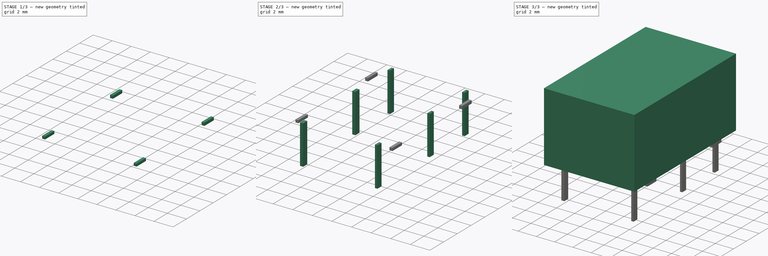
[diagram: build sequence overview — one tinted view per stage of 3, left to right]
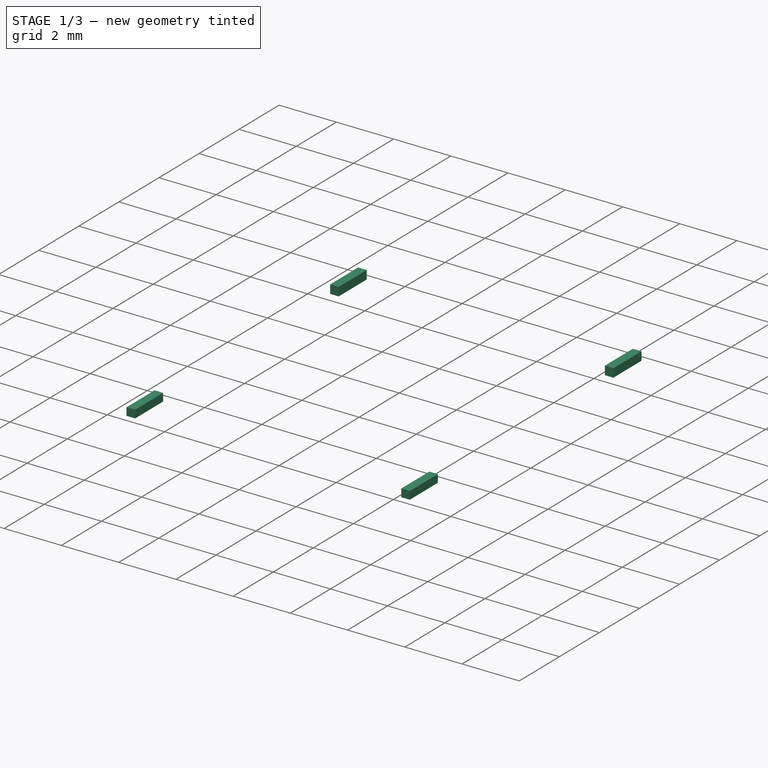
[diagram: stage 1 of 3 — iso view after this stage's code; geometry added in this stage tinted green]
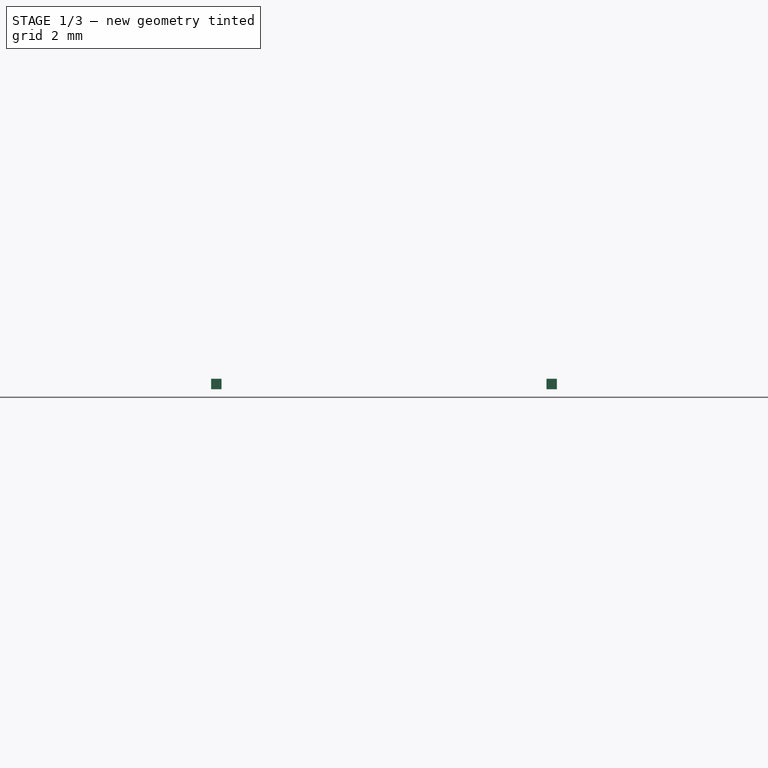
[diagram: stage 1 of 3 — front view after this stage's code; geometry added in this stage tinted green]
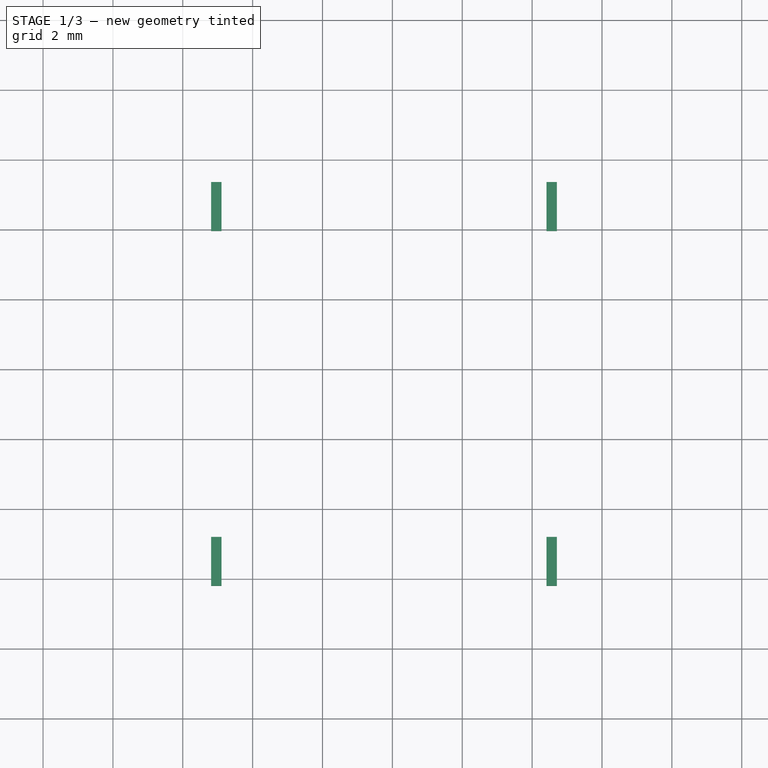
[diagram: stage 1 of 3 — top view after this stage's code; geometry added in this stage tinted green]
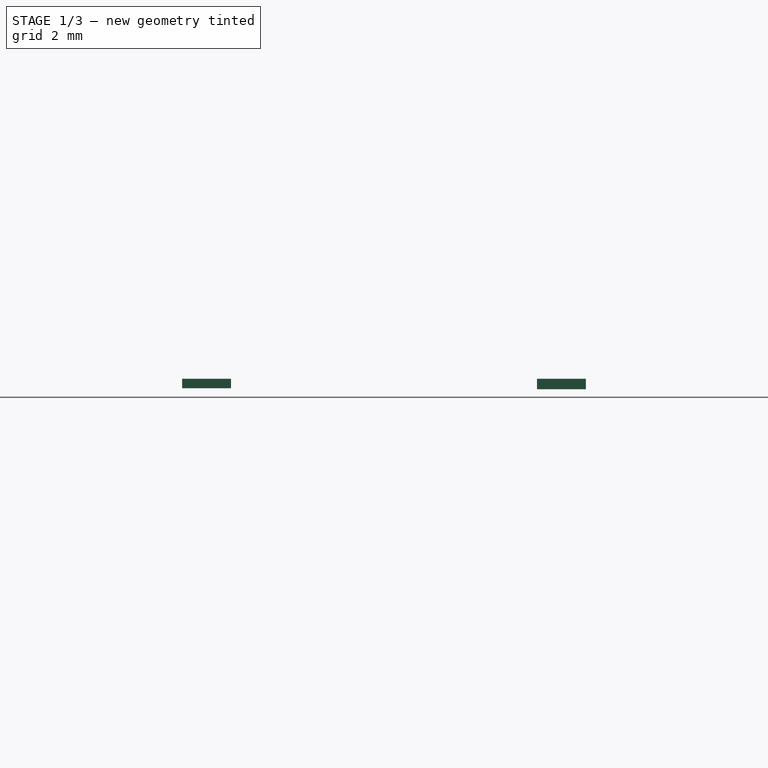
[diagram: stage 1 of 3 — right view after this stage's code; geometry added in this stage tinted green]
FCSTD DOCUMENT  (FreeCAD 0.16R6712 (Git))
Label: Relay_SPDT_Omron_G6EK
License: All rights reserved
LicenseURL: http://en.wikipedia.org/wiki/All_rights_reserved
objects: Sketcher::SketchObject×4, PartDesign::Pad×4, Part::Feature×3, App::DocumentObjectGroup×1, Part::MultiFuse×1
note: 16 computed .brp shape members not serialized (recipe doc carries the construction recipe); baked Part::Feature solids carry a one-line shape summary decoded from their .brp

FEATURE [Sketcher::SketchObject] Sketch004
  Placement = pos=(-1.19,0,0) rot=(0.57735,0.57735,0.57735;2.0944rad)
  expr: Constraints[22] = 4 * 2.54
  expr: Constraints[21] = 1.27 / 2
  sketch-geometry (9):
    g0: LineSegment StartX=-12.195 StartY=0.02686 StartZ=0 EndX=-10.795 EndY=0.02686 EndZ=0
    g1: LineSegment StartX=-10.795 StartY=0.02686 StartZ=0 EndX=-10.795 EndY=0.3 EndZ=0
    g2: LineSegment StartX=-10.795 StartY=0.3 StartZ=0 EndX=-12.195 EndY=0.3 EndZ=0
    g3: LineSegment StartX=-12.195 StartY=0.3 StartZ=0 EndX=-12.195 EndY=0.02686 EndZ=0
    g4: LineSegment StartX=-2.035 StartY=0 StartZ=0 EndX=-0.635 EndY=0 EndZ=0
    g5: LineSegment StartX=-0.635 StartY=0 StartZ=0 EndX=-0.635 EndY=0.3 EndZ=0
    g6: LineSegment StartX=-0.635 StartY=0.3 StartZ=0 EndX=-2.035 EndY=0.3 EndZ=0
    g7: LineSegment StartX=-2.035 StartY=0.3 StartZ=0 EndX=-2.035 EndY=0 EndZ=0
    g8: LineSegment [constr] StartX=-10.795 StartY=0.3 StartZ=0 EndX=-2.035 EndY=0.3 EndZ=0
  constraints (25):
    c: Coincident(g0,g1)
    c: Coincident(g1,g2)
    c: Coincident(g2,g3)
    c: Coincident(g3,g0)
    c: Horizontal(g0)
    c: Horizontal(g2)
    c: Vertical(g1)
    c: Vertical(g3)
    c: Coincident(g4,g5)
    c: Coincident(g5,g6)
    c: Coincident(g6,g7)
    c: Coincident(g7,g4)
    c: Horizontal(g4)
    c: Horizontal(g6)
    c: Vertical(g5)
    c: Vertical(g7)
    c: PointOnObject(g4,g-1)
    c: Coincident(g8,g1)
    c: Coincident(g8,g6)
    c: Horizontal(g8)
    c: DistanceY(g5,g5) = 0.3
    c: DistanceX(g4,g-1) = 0.635
    c: DistanceX(g2,g6) = 10.16
    c: Equal(g0,g6)
    c: DistanceX(g2,g2) = 1.4
FEATURE [PartDesign::Pad] Pad003
  Length = 0.3
  Length2 = 100
  Placement = pos=(-1.19,0,0) rot=(0.57735,0.57735,0.57735;2.0944rad)
  Sketch = -> Sketch004
  Type = 0
FEATURE [Sketcher::SketchObject] Sketch005
  Placement = pos=(8.71,0,0) rot=(0.57735,0.57735,0.57735;2.0944rad)
  expr: Placement.Base.x = 9.9 - 1.19
  expr: Constraints[22] = 4 * 2.54
  expr: Constraints[21] = 1.27 / 2
  sketch-geometry (9):
    g0: LineSegment StartX=-12.195 StartY=0.02686 StartZ=0 EndX=-10.795 EndY=0.02686 EndZ=0
    g1: LineSegment StartX=-10.795 StartY=0.02686 StartZ=0 EndX=-10.795 EndY=0.3 EndZ=0
    g2: LineSegment StartX=-10.795 StartY=0.3 StartZ=0 EndX=-12.195 EndY=0.3 EndZ=0
    g3: LineSegment StartX=-12.195 StartY=0.3 StartZ=0 EndX=-12.195 EndY=0.02686 EndZ=0
    g4: LineSegment StartX=-2.035 StartY=0 StartZ=0 EndX=-0.635 EndY=0 EndZ=0
    g5: LineSegment StartX=-0.635 StartY=0 StartZ=0 EndX=-0.635 EndY=0.3 EndZ=0
    g6: LineSegment StartX=-0.635 StartY=0.3 StartZ=0 EndX=-2.035 EndY=0.3 EndZ=0
    g7: LineSegment StartX=-2.035 StartY=0.3 StartZ=0 EndX=-2.035 EndY=0 EndZ=0
    g8: LineSegment [constr] StartX=-10.795 StartY=0.3 StartZ=0 EndX=-2.035 EndY=0.3 EndZ=0
  constraints (25):
    c: Coincident(g0,g1)
    c: Coincident(g1,g2)
    c: Coincident(g2,g3)
    c: Coincident(g3,g0)
    c: Horizontal(g0)
    c: Horizontal(g2)
    c: Vertical(g1)
    c: Vertical(g3)
    c: Coincident(g4,g5)
    c: Coincident(g5,g6)
    c: Coincident(g6,g7)
    c: Coincident(g7,g4)
    c: Horizontal(g4)
    c: Horizontal(g6)
    c: Vertical(g5)
    c: Vertical(g7)
    c: PointOnObject(g4,g-1)
    c: Coincident(g8,g1)
    c: Coincident(g8,g6)
    c: Horizontal(g8)
    c: DistanceY(g5,g5) = 0.3
    c: DistanceX(g4,g-1) = 0.635
    c: DistanceX(g2,g6) = 10.16
    c: Equal(g0,g6)
    c: DistanceX(g2,g2) = 1.4
FEATURE [PartDesign::Pad] Pad004
  Length = 0.3
  Length2 = 100
  Placement = pos=(8.71,0,0) rot=(0.57735,0.57735,0.57735;2.0944rad)
  Reversed = true
  Sketch = -> Sketch005
  Type = 0
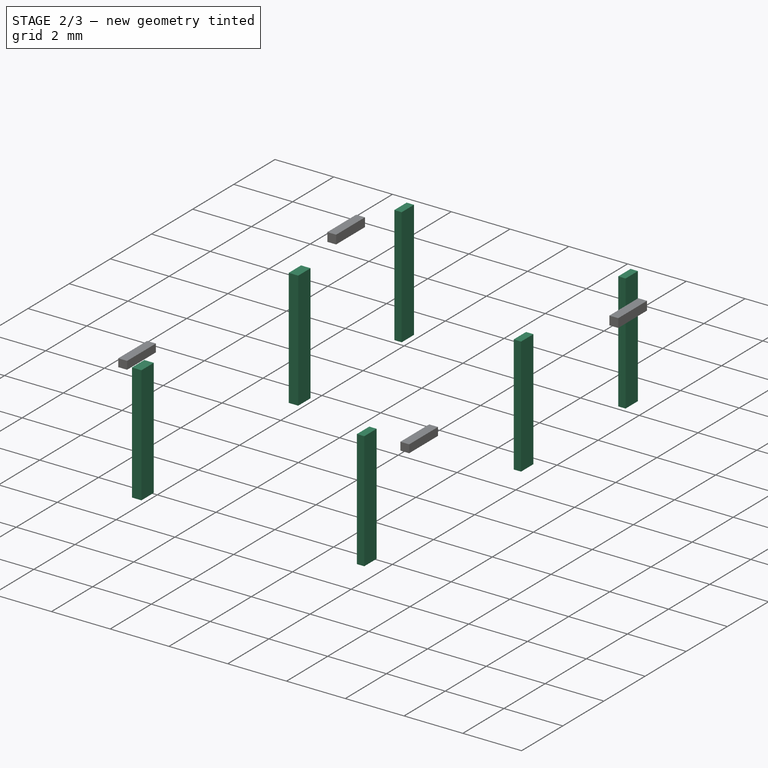
[diagram: stage 2 of 3 — iso view after this stage's code; geometry added in this stage tinted green]
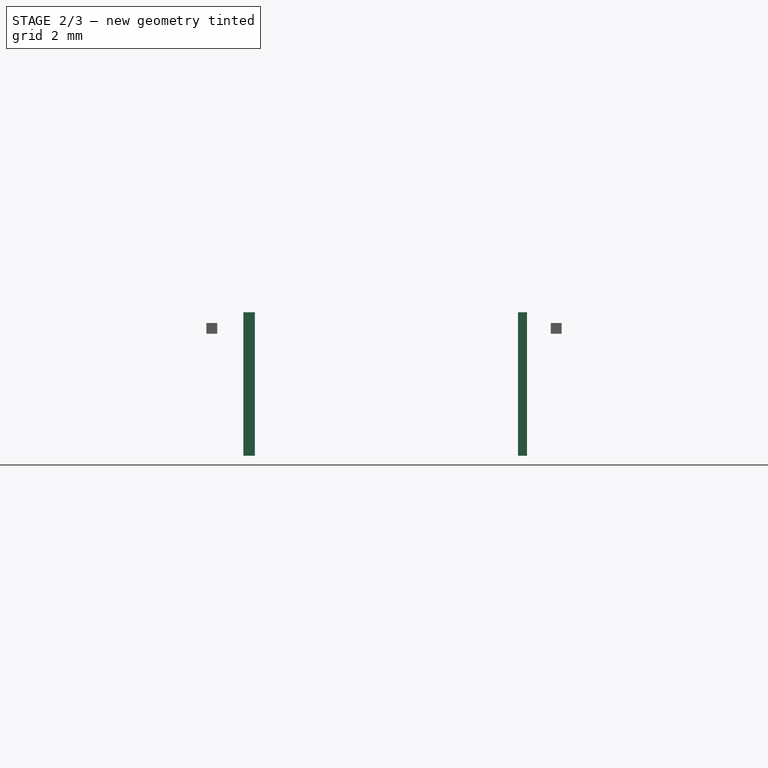
[diagram: stage 2 of 3 — front view after this stage's code; geometry added in this stage tinted green]
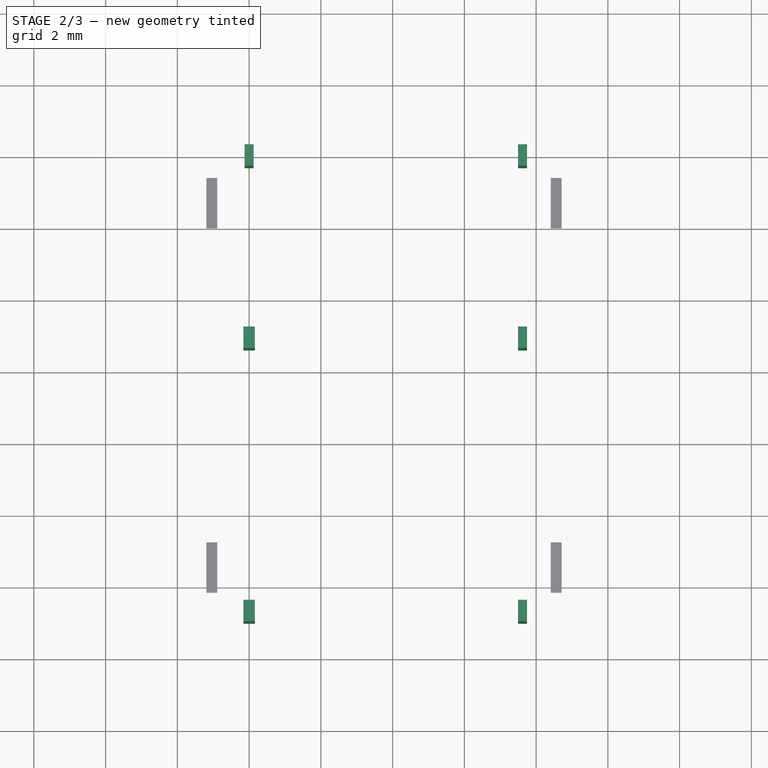
[diagram: stage 2 of 3 — top view after this stage's code; geometry added in this stage tinted green]
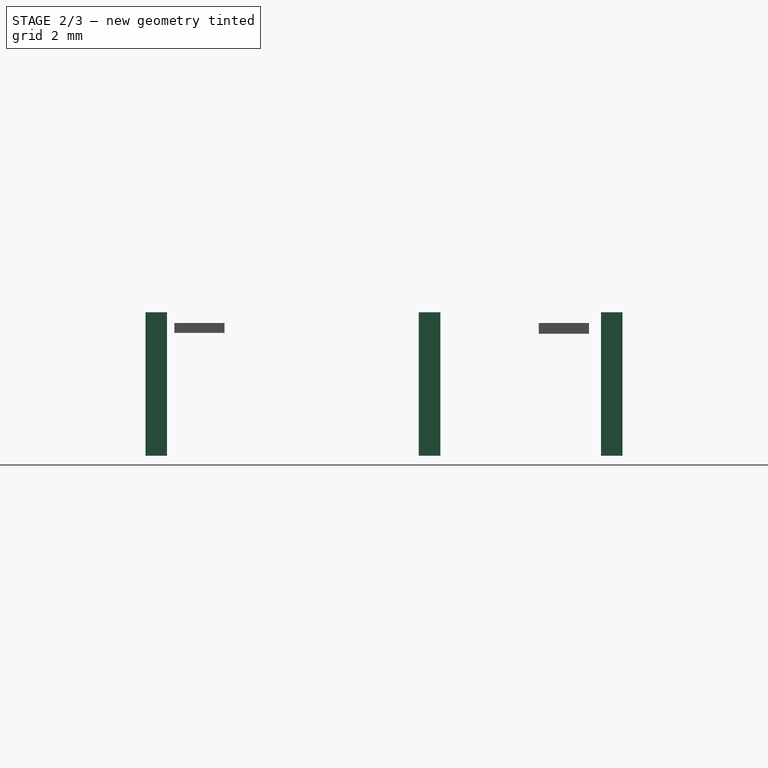
[diagram: stage 2 of 3 — right view after this stage's code; geometry added in this stage tinted green]
FEATURE [Sketcher::SketchObject] Sketch001
  Placement = pos=(0,0,0.6) rot=(0,0,-1;1.5708rad)
  sketch-geometry (32):
    g0: LineSegment StartX=-0.3 StartY=-0.125 StartZ=0 EndX=0.3 EndY=-0.125 EndZ=0
    g1: LineSegment StartX=0.3 StartY=-0.125 StartZ=0 EndX=0.3 EndY=0.125 EndZ=0
    g2: LineSegment StartX=0.3 StartY=0.125 StartZ=0 EndX=-0.3 EndY=0.125 EndZ=0
    g3: LineSegment StartX=-0.3 StartY=0.125 StartZ=0 EndX=-0.3 EndY=-0.125 EndZ=0
    g4: LineSegment StartX=-0.3 StartY=7.495 StartZ=0 EndX=0.3 EndY=7.495 EndZ=0
    g5: LineSegment StartX=0.3 StartY=7.495 StartZ=0 EndX=0.3 EndY=7.745 EndZ=0
    g6: LineSegment StartX=0.3 StartY=7.745 StartZ=0 EndX=-0.3 EndY=7.745 EndZ=0
    g7: LineSegment StartX=-0.3 StartY=7.745 StartZ=0 EndX=-0.3 EndY=7.495 EndZ=0
    g8: LineSegment StartX=5.38 StartY=7.495 StartZ=0 EndX=4.78 EndY=7.495 EndZ=0
    g9: LineSegment StartX=4.78 StartY=7.495 StartZ=0 EndX=4.78 EndY=7.745 EndZ=0
    g10: LineSegment StartX=4.78 StartY=7.745 StartZ=0 EndX=5.38 EndY=7.745 EndZ=0
    g11: LineSegment StartX=5.38 StartY=7.745 StartZ=0 EndX=5.38 EndY=7.495 EndZ=0
    g12: LineSegment StartX=12.4 StartY=0.161469 StartZ=0 EndX=12.4 EndY=-0.161469 EndZ=0
    g13: LineSegment StartX=12.4 StartY=7.745 StartZ=0 EndX=13 EndY=7.745 EndZ=0
    g14: LineSegment StartX=13 StartY=7.745 StartZ=0 EndX=13 EndY=7.495 EndZ=0
    g15: LineSegment StartX=13 StartY=7.495 StartZ=0 EndX=12.4 EndY=7.495 EndZ=0
    g16: LineSegment StartX=12.4 StartY=7.495 StartZ=0 EndX=12.4 EndY=7.745 EndZ=0
    g17: GeomPoint [constr] X=12.4 Y=0 Z=0
    g18: LineSegment [constr] StartX=12.4 StartY=7.745 StartZ=0 EndX=12.4 EndY=0.161469 EndZ=0
    g19: LineSegment [constr] StartX=4.78 StartY=7.745 StartZ=0 EndX=4.78 EndY=0.161469 EndZ=0
    g20: LineSegment [constr] StartX=-0.3 StartY=7.62 StartZ=0 EndX=12.4 EndY=7.62 EndZ=0
    g21: GeomPoint [constr] X=4.78 Y=7.62 Z=0
    g22: GeomPoint [constr] X=0 Y=0.125 Z=0
    g23: GeomPoint [constr] X=-0.3 Y=0 Z=0
    g24: LineSegment StartX=12.4 StartY=0.161469 StartZ=0 EndX=13 EndY=0.161469 EndZ=0
    g25: LineSegment StartX=13 StartY=0.161469 StartZ=0 EndX=13 EndY=-0.161469 EndZ=0
    g26: LineSegment StartX=13 StartY=-0.161469 StartZ=0 EndX=12.4 EndY=-0.161469 EndZ=0
    g27: LineSegment StartX=4.78 StartY=0.161469 StartZ=0 EndX=5.38 EndY=0.161469 EndZ=0
    g28: LineSegment StartX=5.38 StartY=0.161469 StartZ=0 EndX=5.38 EndY=-0.161469 EndZ=0
    g29: LineSegment StartX=5.38 StartY=-0.161469 StartZ=0 EndX=4.78 EndY=-0.161469 EndZ=0
    g30: LineSegment StartX=4.78 StartY=-0.161469 StartZ=0 EndX=4.78 EndY=0.161469 EndZ=0
    g31: GeomPoint [constr] X=4.78 Y=0 Z=0
  constraints (90):
    c: Coincident(g0,g1)
    c: Coincident(g1,g2)
    c: Coincident(g2,g3)
    c: Coincident(g3,g0)
    c: Horizontal(g0)
    c: Horizontal(g2)
    c: Vertical(g1)
    c: Vertical(g3)
    c: DistanceX(g2,g2) = 0.6
    c: DistanceY(g1,g1) = 0.25
    c: Coincident(g4,g5)
    c: Coincident(g5,g6)
    c: Coincident(g6,g7)
    c: Coincident(g7,g4)
    c: Horizontal(g4)
    c: Horizontal(g6)
    c: Vertical(g5)
    c: Vertical(g7)
    c: Equal(g2,g6) = 0.3
    c: Equal(g1,g5) = 0.3
    c: Coincident(g8,g9)
    c: Coincident(g9,g10)
    c: Coincident(g10,g11)
    c: Coincident(g11,g8)
    c: Horizontal(g8)
    c: Horizontal(g10)
    c: Vertical(g9)
    c: Vertical(g11)
    c: DistanceX(g4,g2) = 0
    c: Horizontal(g13)
    c: Horizontal(g15)
    c: Equal(g11,g16) = 0.3
    c: PointOnObject(g17,g12)
    c: PointOnObject(g17,g-1)
    c: Symmetric(g12,g12,g17)
    c: Coincident(g18,g13)
    c: Vertical(g18)
    c: Coincident(g19,g9)
    c: Vertical(g19)
    c: PointOnObject(g20,g7)
    c: PointOnObject(g20,g16)
    c: Horizontal(g20)
    c: Symmetric(g16,g16,g20)
    c: PointOnObject(g21,g9)
    c: PointOnObject(g21,g20)
    c: Symmetric(g9,g9,g21)
    c: Symmetric(g7,g7,g20)
    c: DistanceY(g-1,g20) = 7.62
    c: PointOnObject(g22,g2)
    c: PointOnObject(g23,g3)
    c: PointOnObject(g23,g-1)
    c: Symmetric(g3,g3,g23)
    c: PointOnObject(g22,g-2)
    c: Symmetric(g2,g2,g22)
    c: DistanceX(g21,g20) = 7.62
    c: Vertical(g12)
    c: Coincident(g24,g12)
    c: Horizontal(g24)
    c: Coincident(g25,g24)
    c: Vertical(g25)
    c: Coincident(g26,g25)
    c: Coincident(g26,g12)
    c: Horizontal(g26)
    c: Coincident(g18,g12)
    c: Equal(g24,g15)
    c: Coincident(g14,g15)
    c: Coincident(g15,g16)
    c: Coincident(g13,g16)
    c: Vertical(g14)
    c: Vertical(g16)
    c: Coincident(g13,g14)
    c: Equal(g10,g13)
    c: Equal(g2,g6)
    c: Equal(g10,g6)
    c: Equal(g11,g5)
    c: DistanceX(g4,g8) = 5.08
    c: Coincident(g27,g28)
    c: Coincident(g28,g29)
    c: Coincident(g29,g30)
    c: Coincident(g30,g27)
    c: Horizontal(g27)
    c: Horizontal(g29)
    c: Vertical(g28)
    c: Vertical(g30)
    c: Coincident(g27,g19)
    c: Equal(g27,g24)
    c: Equal(g28,g25)
    c: PointOnObject(g31,g30)
    c: PointOnObject(g31,g-1)
    c: Symmetric(g30,g30,g31)
FEATURE [PartDesign::Pad] Pad001
  Length = 4
  Length2 = 100
  Placement = pos=(0,0,0.6) rot=(0,0,-1;1.5708rad)
  Reversed = true
  Sketch = -> Sketch001
  Type = 0
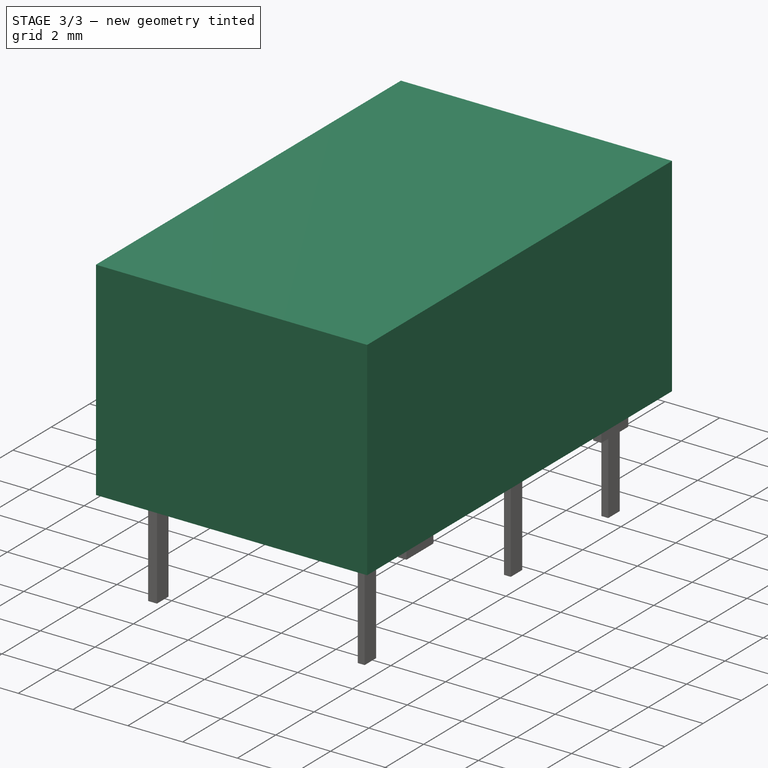
[diagram: stage 3 of 3 — iso view after this stage's code; geometry added in this stage tinted green]
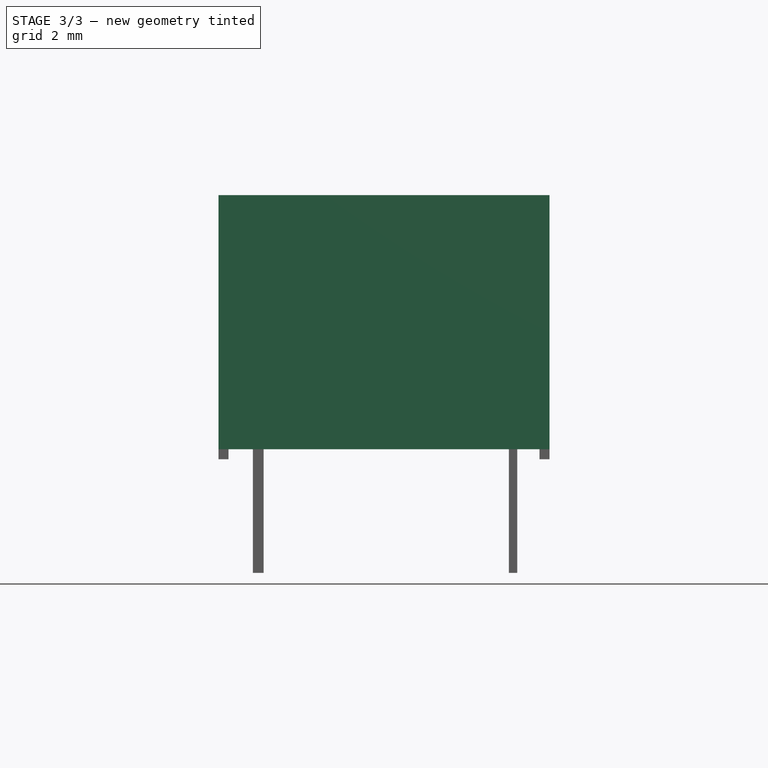
[diagram: stage 3 of 3 — front view after this stage's code; geometry added in this stage tinted green]
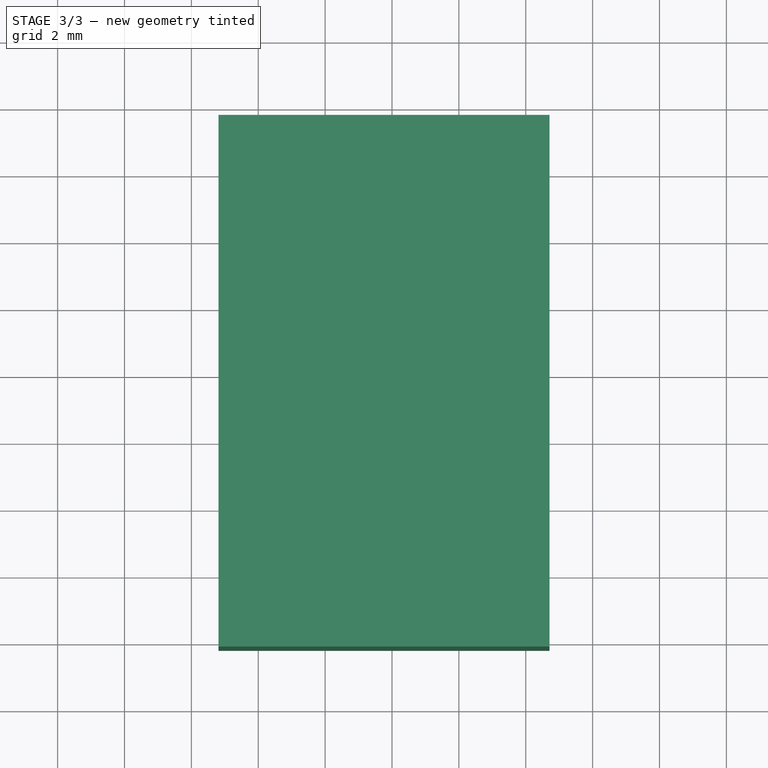
[diagram: stage 3 of 3 — top view after this stage's code; geometry added in this stage tinted green]
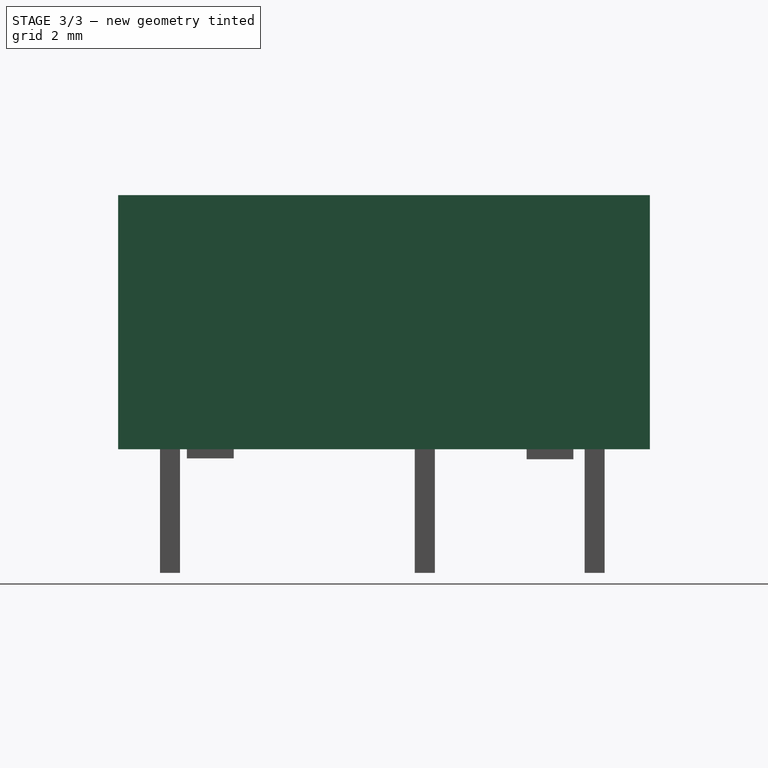
[diagram: stage 3 of 3 — right view after this stage's code; geometry added in this stage tinted green]
FEATURE [Sketcher::SketchObject] Sketch
  Placement = pos=(0,0,0.3) rot=(0,0,-1;1.5708rad)
  sketch-geometry (4):
    g0: LineSegment StartX=-1.65 StartY=-1.19 StartZ=0 EndX=14.25 EndY=-1.19 EndZ=0
    g1: LineSegment StartX=14.25 StartY=-1.19 StartZ=0 EndX=14.25 EndY=8.71 EndZ=0
    g2: LineSegment StartX=14.25 StartY=8.71 StartZ=0 EndX=-1.65 EndY=8.71 EndZ=0
    g3: LineSegment StartX=-1.65 StartY=8.71 StartZ=0 EndX=-1.65 EndY=-1.19 EndZ=0
  constraints (12):
    c: Coincident(g0,g1)
    c: Coincident(g1,g2)
    c: Coincident(g2,g3)
    c: Coincident(g3,g0)
    c: Horizontal(g0)
    c: Horizontal(g2)
    c: Vertical(g1)
    c: Vertical(g3)
    c: DistanceX(g2,g2) = 15.9
    c: DistanceY(g1,g1) = 9.9
    c: DistanceX(g0,g-1) = 1.65
    c: DistanceY(g0,g-1) = 1.19
FEATURE [PartDesign::Pad] Pad
  Length = 7.6
  Length2 = 100
  Placement = pos=(0,0,0.3) rot=(0,0,-1;1.5708rad)
  Sketch = -> Sketch
  Type = 0
FEATURE [Part::Feature] FusionAxisZ1  label="Z"
  shape: bbox 0.8 x 0.8 x 14 mm, 8 faces (baked)
FEATURE [Part::Feature] FusionAxisY1  label="Y"
  Placement = pos=(0,0,0.05) rot=(-1,0,0;1.5708rad)
  shape: bbox 0.8 x 14 x 0.8 mm, 8 faces (baked)
FEATURE [Part::Feature] FusionAxisX1  label="X"
  Placement = pos=(0,-0.05,0) rot=(0,1,0;1.5708rad)
  shape: bbox 14 x 0.8 x 0.8 mm, 8 faces (baked)
FEATURE [App::DocumentObjectGroup] axis
  Group = -> [FusionAxisZ1,FusionAxisY1,FusionAxisX1]
FEATURE [Part::MultiFuse] Pad_mp_cp  label="Relay_SPDT_Omron_G6EK"
  Shapes = -> [Pad,Pad003,Pad001,Pad004]
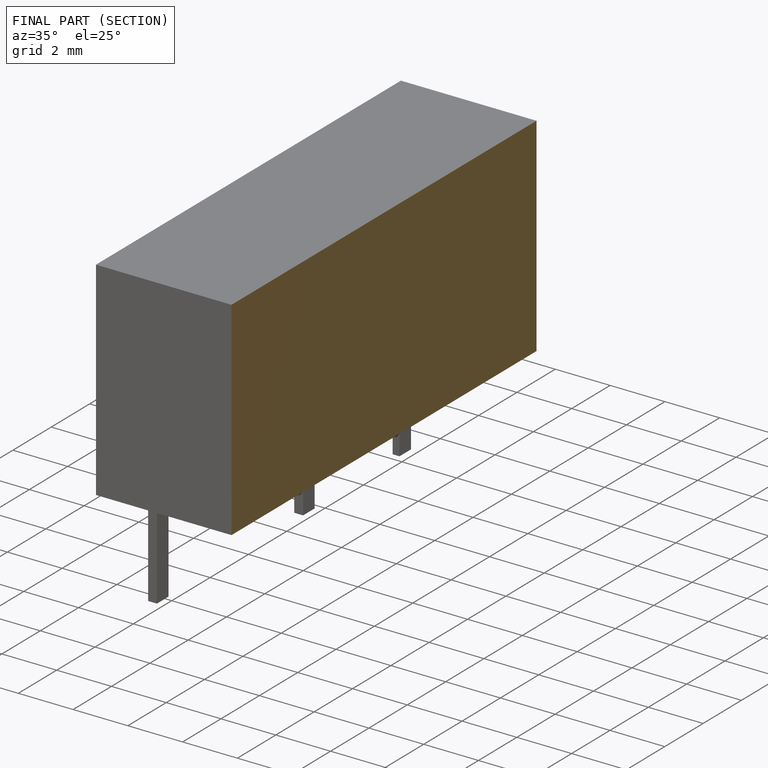
[diagram: finished part — half-section view (interior)]
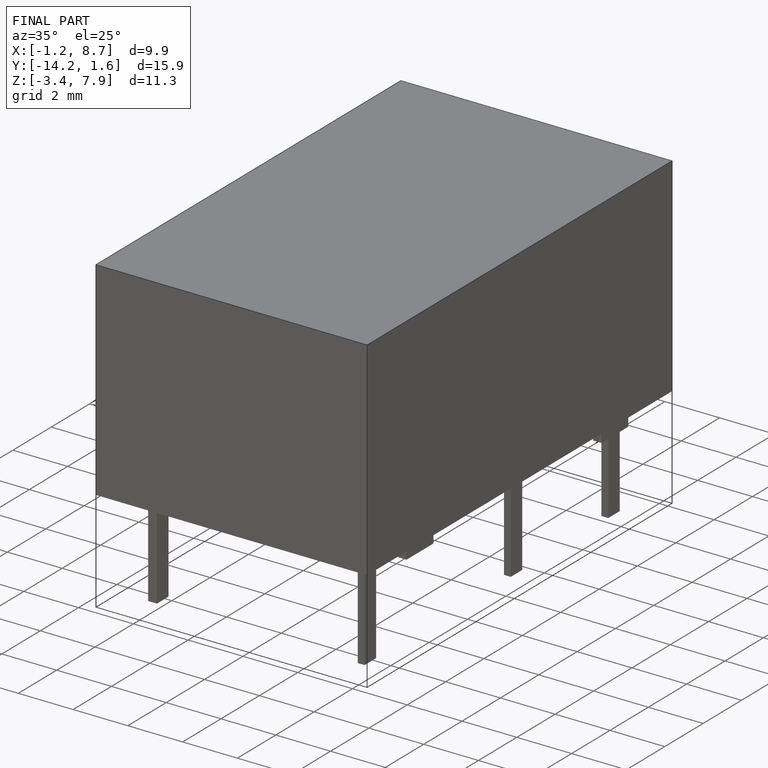
[diagram: finished part — iso view with bounding-box wireframe]
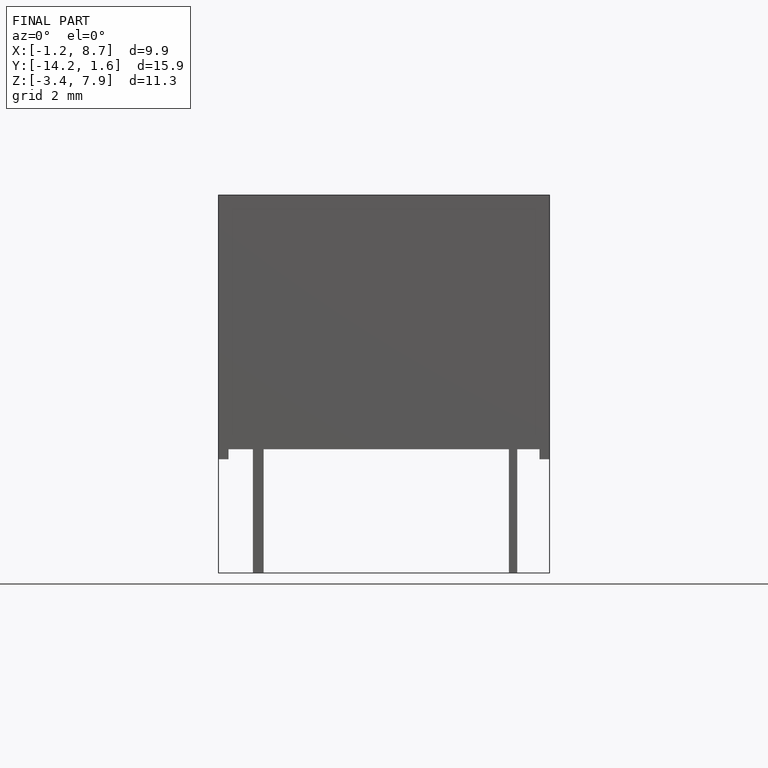
[diagram: finished part — front view with bounding-box wireframe]
